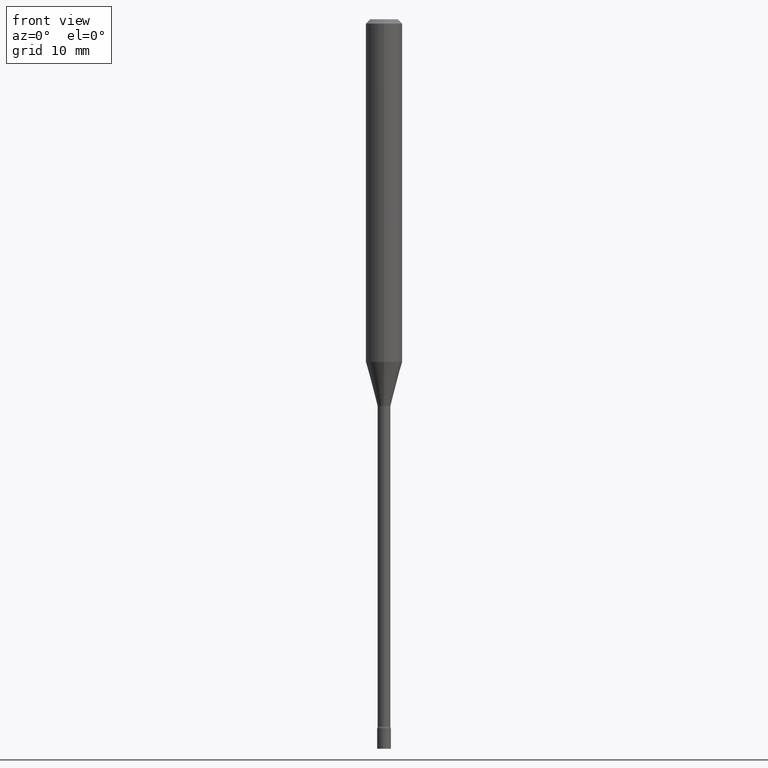
[diagram: clean part render]
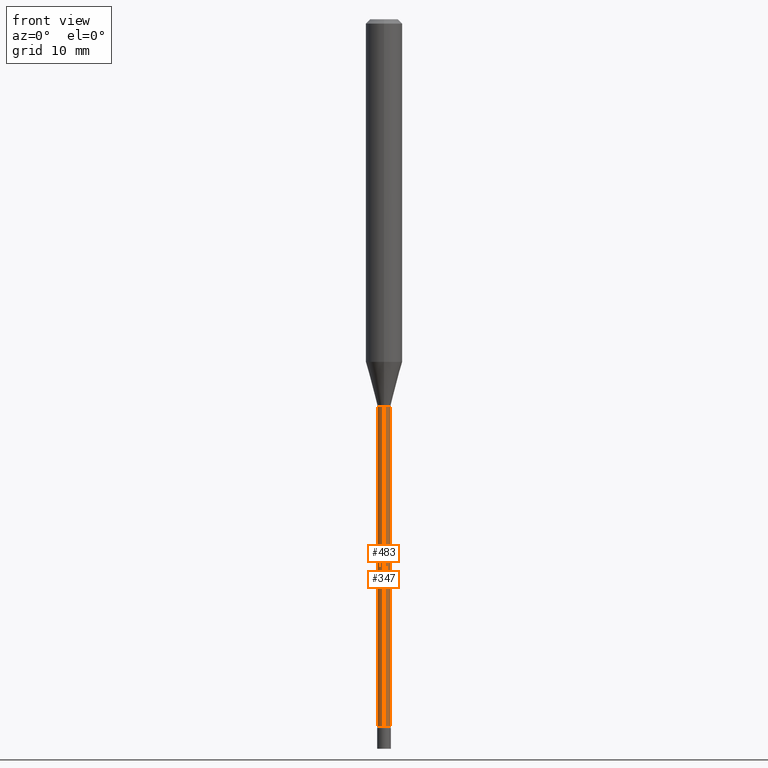
[diagram: same view with one multi-face feature highlighted, each face labeled with its STEP entity id]
A machine part, front view. The highlighted faces form ONE feature: a constant-radius fillet chain: 2 tangent blend faces with common blend radius 0.5613 mm. The faces share edges in the B-rep.
Their STEP definitions:
[1] entity #347 (Cylinder):
#8 = CARTESIAN_POINT ( 'NONE',  ( 5.924601570450546982E-29, -8.458669134682363583E-15, -2.422672283192177645 ) ) ;
#10 = DIRECTION ( 'NONE',  ( -6.982962677686266711E-15, -1.000000000000000000, 0.000000000000000000 ) ) ;
#11 = EDGE_CURVE ( 'NONE', #156, #80, #402, .T. ) ;
#66 = AXIS2_PLACEMENT_3D ( 'NONE', #8, #163, #10 ) ;
#75 = VERTEX_POINT ( 'NONE', #319 ) ;
#80 = VERTEX_POINT ( 'NONE', #435 ) ;
#85 = AXIS2_PLACEMENT_3D ( 'NONE', #438, #395, #349 ) ;
#105 = EDGE_LOOP ( 'NONE', ( #478, #430, #466, #444 ) ) ;
#106 = LINE ( 'NONE', #214, #230 ) ;
#141 = DIRECTION ( 'NONE',  ( -2.445482045406543342E-29, 3.491462379524561524E-15, 1.000000000000000000 ) ) ;
#156 = VERTEX_POINT ( 'NONE', #494 ) ;
#158 = DIRECTION ( 'NONE',  ( -2.445482045406543342E-29, 3.491462379524561524E-15, 1.000000000000000000 ) ) ;
#163 = DIRECTION ( 'NONE',  ( -2.445482045406543342E-29, 3.491462379524561524E-15, 1.000000000000000000 ) ) ;
#171 = CIRCLE ( 'NONE', #85, 0.02210000000000000506 ) ;
#200 = FACE_OUTER_BOUND ( 'NONE', #105, .T. ) ;
#206 = CARTESIAN_POINT ( 'NONE',  ( -1.543234751768668812E-16, -0.02210000000000005710, 7.716131858749301636E-17 ) ) ;
#214 = CARTESIAN_POINT ( 'NONE',  ( 1.570299446029825221E-16, 0.02210000000000005710, -7.716131858749301636E-17 ) ) ;
#228 = CARTESIAN_POINT ( 'NONE',  ( 0.000000000000000000, 0.000000000000000000, 0.000000000000000000 ) ) ;
#230 = VECTOR ( 'NONE', #141, 39.37007874015748143 ) ;
#233 = DIRECTION ( 'NONE',  ( -6.982962677686265922E-15, -1.000000000000000000, 3.491462379524561919E-15 ) ) ;
#241 = EDGE_CURVE ( 'NONE', #507, #75, #106, .T. ) ;
#289 = AXIS2_PLACEMENT_3D ( 'NONE', #228, #308, #233 ) ;
#308 = DIRECTION ( 'NONE',  ( -2.445482045406543342E-29, 3.491462379524561524E-15, 1.000000000000000000 ) ) ;
#319 = CARTESIAN_POINT ( 'NONE',  ( 1.570299446030417360E-16, 0.02209999999999536988, -1.326974787463811145 ) ) ;
#335 = EDGE_CURVE ( 'NONE', #80, #75, #171, .T. ) ;
#347 = ADVANCED_FACE ( 'NONE', ( #200 ), #515, .T. ) ;
#349 = DIRECTION ( 'NONE',  ( -6.982962677686265922E-15, -1.000000000000000000, 0.000000000000000000 ) ) ;
#358 = CARTESIAN_POINT ( 'NONE',  ( 1.620037437533626044E-16, 0.02209999999999164716, -2.422672283192177645 ) ) ;
#390 = CIRCLE ( 'NONE', #66, 0.02210000000000010914 ) ;
#395 = DIRECTION ( 'NONE',  ( -2.445482045406543342E-29, 3.491462379524561524E-15, 1.000000000000000000 ) ) ;
#402 = LINE ( 'NONE', #206, #445 ) ;
#430 = ORIENTED_EDGE ( 'NONE', *, *, #241, .T. ) ;
#435 = CARTESIAN_POINT ( 'NONE',  ( -1.543234751768340696E-16, -0.02210000000000463677, -1.326974787463811145 ) ) ;
#438 = CARTESIAN_POINT ( 'NONE',  ( 3.245093017449914166E-29, -4.633082549007498078E-15, -1.326974787463811145 ) ) ;
#440 = EDGE_CURVE ( 'NONE', #156, #507, #390, .T. ) ;
#444 = ORIENTED_EDGE ( 'NONE', *, *, #11, .F. ) ;
#445 = VECTOR ( 'NONE', #158, 39.37007874015748143 ) ;
#466 = ORIENTED_EDGE ( 'NONE', *, *, #335, .F. ) ;
#478 = ORIENTED_EDGE ( 'NONE', *, *, #440, .T. ) ;
#494 = CARTESIAN_POINT ( 'NONE',  ( -1.543234751768080125E-16, -0.02210000000000856765, -2.422672283192177645 ) ) ;
#507 = VERTEX_POINT ( 'NONE', #358 ) ;
#515 = CYLINDRICAL_SURFACE ( 'NONE', #289, 0.02210000000000005710 ) ;
[2] entity #483 (Cylinder):
#11 = EDGE_CURVE ( 'NONE', #156, #80, #402, .T. ) ;
#37 = ORIENTED_EDGE ( 'NONE', *, *, #241, .F. ) ;
#46 = FACE_OUTER_BOUND ( 'NONE', #472, .T. ) ;
#75 = VERTEX_POINT ( 'NONE', #319 ) ;
#80 = VERTEX_POINT ( 'NONE', #435 ) ;
#87 = CYLINDRICAL_SURFACE ( 'NONE', #400, 0.02210000000000005710 ) ;
#106 = LINE ( 'NONE', #214, #230 ) ;
#121 = DIRECTION ( 'NONE',  ( -6.982962677686266711E-15, -1.000000000000000000, 0.000000000000000000 ) ) ;
#122 = EDGE_CURVE ( 'NONE', #507, #156, #476, .T. ) ;
#141 = DIRECTION ( 'NONE',  ( -2.445482045406543342E-29, 3.491462379524561524E-15, 1.000000000000000000 ) ) ;
#151 = EDGE_CURVE ( 'NONE', #75, #80, #193, .T. ) ;
#156 = VERTEX_POINT ( 'NONE', #494 ) ;
#158 = DIRECTION ( 'NONE',  ( -2.445482045406543342E-29, 3.491462379524561524E-15, 1.000000000000000000 ) ) ;
#193 = CIRCLE ( 'NONE', #273, 0.02210000000000000506 ) ;
#206 = CARTESIAN_POINT ( 'NONE',  ( -1.543234751768668812E-16, -0.02210000000000005710, 7.716131858749301636E-17 ) ) ;
#214 = CARTESIAN_POINT ( 'NONE',  ( 1.570299446029825221E-16, 0.02210000000000005710, -7.716131858749301636E-17 ) ) ;
#230 = VECTOR ( 'NONE', #141, 39.37007874015748143 ) ;
#237 = CARTESIAN_POINT ( 'NONE',  ( 5.924601570450546982E-29, -8.458669134682363583E-15, -2.422672283192177645 ) ) ;
#241 = EDGE_CURVE ( 'NONE', #507, #75, #106, .T. ) ;
#256 = DIRECTION ( 'NONE',  ( -6.982962677686265922E-15, -1.000000000000000000, 0.000000000000000000 ) ) ;
#264 = ORIENTED_EDGE ( 'NONE', *, *, #122, .T. ) ;
#273 = AXIS2_PLACEMENT_3D ( 'NONE', #424, #421, #256 ) ;
#307 = ORIENTED_EDGE ( 'NONE', *, *, #11, .T. ) ;
#319 = CARTESIAN_POINT ( 'NONE',  ( 1.570299446030417360E-16, 0.02209999999999536988, -1.326974787463811145 ) ) ;
#321 = DIRECTION ( 'NONE',  ( -6.982962677686265922E-15, -1.000000000000000000, 3.491462379524561919E-15 ) ) ;
#358 = CARTESIAN_POINT ( 'NONE',  ( 1.620037437533626044E-16, 0.02209999999999164716, -2.422672283192177645 ) ) ;
#400 = AXIS2_PLACEMENT_3D ( 'NONE', #487, #443, #321 ) ;
#402 = LINE ( 'NONE', #206, #445 ) ;
#415 = AXIS2_PLACEMENT_3D ( 'NONE', #237, #480, #121 ) ;
#421 = DIRECTION ( 'NONE',  ( -2.445482045406543342E-29, 3.491462379524561524E-15, 1.000000000000000000 ) ) ;
#424 = CARTESIAN_POINT ( 'NONE',  ( 3.245093017449914166E-29, -4.633082549007498078E-15, -1.326974787463811145 ) ) ;
#435 = CARTESIAN_POINT ( 'NONE',  ( -1.543234751768340696E-16, -0.02210000000000463677, -1.326974787463811145 ) ) ;
#443 = DIRECTION ( 'NONE',  ( -2.445482045406543342E-29, 3.491462379524561524E-15, 1.000000000000000000 ) ) ;
#445 = VECTOR ( 'NONE', #158, 39.37007874015748143 ) ;
#472 = EDGE_LOOP ( 'NONE', ( #37, #264, #307, #474 ) ) ;
#474 = ORIENTED_EDGE ( 'NONE', *, *, #151, .F. ) ;
#476 = CIRCLE ( 'NONE', #415, 0.02210000000000010914 ) ;
#480 = DIRECTION ( 'NONE',  ( -2.445482045406543342E-29, 3.491462379524561524E-15, 1.000000000000000000 ) ) ;
#483 = ADVANCED_FACE ( 'NONE', ( #46 ), #87, .T. ) ;
#487 = CARTESIAN_POINT ( 'NONE',  ( 0.000000000000000000, 0.000000000000000000, 0.000000000000000000 ) ) ;
#494 = CARTESIAN_POINT ( 'NONE',  ( -1.543234751768080125E-16, -0.02210000000000856765, -2.422672283192177645 ) ) ;
#507 = VERTEX_POINT ( 'NONE', #358 ) ;